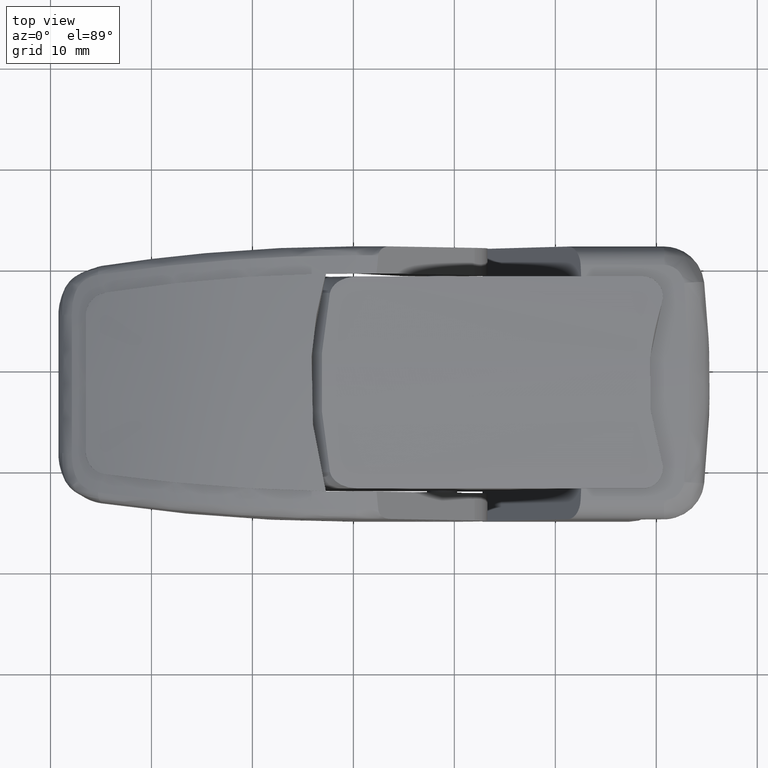
[diagram: clean part render]
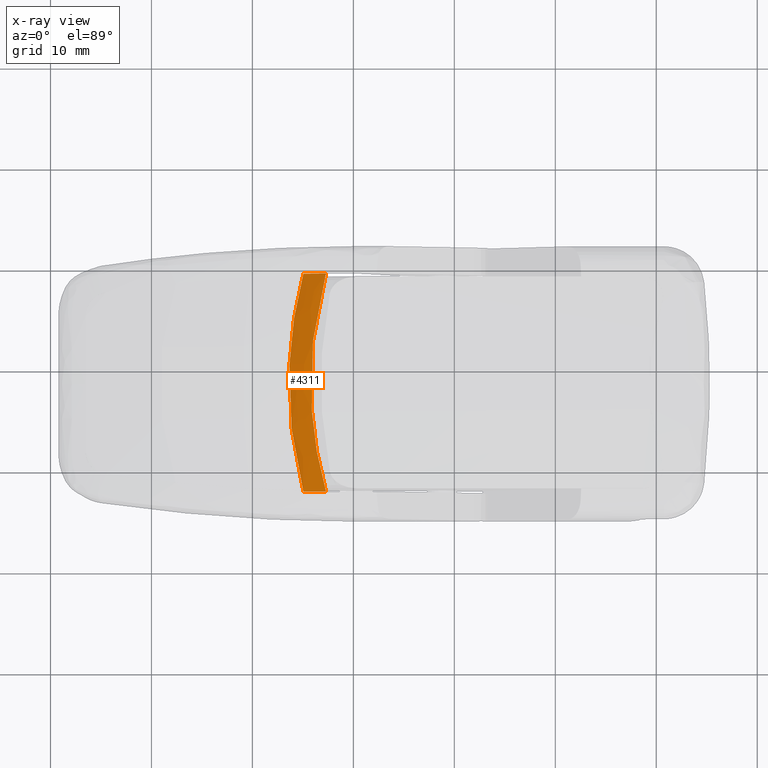
[diagram: x-ray — body ghosted, one internal face saturated and labeled with its STEP entity id]
A machine part, top view, then the same camera in x-ray: the body is ghosted and one INTERNAL B-rep face — a face not visible from any outside direction — is saturated and labeled: STEP entity #4311.
In plain terms, the highlighted face is a freeform B-spline surface patch.
Its self-contained STEP definition (entity closure, byte-faithful):
#120=B_SPLINE_CURVE_WITH_KNOTS('',3,(#7923,#7924,#7925,#7926,#7927,#7928,
#7929,#7930),.UNSPECIFIED.,.F.,.F.,(4,2,2,4),(-2.18820724104218,-1.63768358159095,
-1.09483879283369,0.),.UNSPECIFIED.);
#125=B_SPLINE_CURVE_WITH_KNOTS('',3,(#8123,#8124,#8125,#8126,#8127,#8128,
#8129),.UNSPECIFIED.,.F.,.F.,(4,3,4),(0.,0.142083417204696,0.284452891541096),
 .UNSPECIFIED.);
#126=B_SPLINE_CURVE_WITH_KNOTS('',3,(#8131,#8132,#8133,#8134,#8135,#8136,
#8137),.UNSPECIFIED.,.F.,.F.,(4,3,4),(0.,0.142243869716939,0.284459047716743),
 .UNSPECIFIED.);
#127=B_SPLINE_CURVE_WITH_KNOTS('',3,(#8138,#8139,#8140,#8141,#8142,#8143,
#8144,#8145,#8146,#8147,#8148,#8149,#8150,#8151,#8152,#8153,#8154,#8155,
#8156,#8157,#8158,#8159,#8160,#8161,#8162,#8163,#8164,#8165,#8166,#8167,
#8168,#8169,#8170,#8171,#8172,#8173,#8174,#8175,#8176,#8177),
 .UNSPECIFIED.,.F.,.F.,(4,3,3,3,3,3,3,3,3,3,3,3,3,4),(-2.33002564819911,
-2.13088462914417,-1.93462831574654,-1.83743085028154,-1.64448839725067,
-1.54859831879781,-1.35759771025373,-1.26234259844651,-1.07196446412065,
-0.976709356284376,-0.785708622756046,-0.68981848137074,-0.399678355137873,
-0.00428100592109865),.UNSPECIFIED.);
#179=B_SPLINE_SURFACE_WITH_KNOTS('',3,3,((#8010,#8011,#8012,#8013,#8014,
#8015,#8016,#8017,#8018,#8019,#8020,#8021,#8022,#8023,#8024,#8025,#8026,
#8027,#8028,#8029,#8030,#8031,#8032,#8033,#8034,#8035,#8036,#8037),(#8038,
#8039,#8040,#8041,#8042,#8043,#8044,#8045,#8046,#8047,#8048,#8049,#8050,
#8051,#8052,#8053,#8054,#8055,#8056,#8057,#8058,#8059,#8060,#8061,#8062,
#8063,#8064,#8065),(#8066,#8067,#8068,#8069,#8070,#8071,#8072,#8073,#8074,
#8075,#8076,#8077,#8078,#8079,#8080,#8081,#8082,#8083,#8084,#8085,#8086,
#8087,#8088,#8089,#8090,#8091,#8092,#8093),(#8094,#8095,#8096,#8097,#8098,
#8099,#8100,#8101,#8102,#8103,#8104,#8105,#8106,#8107,#8108,#8109,#8110,
#8111,#8112,#8113,#8114,#8115,#8116,#8117,#8118,#8119,#8120,#8121)),
 .UNSPECIFIED.,.F.,.F.,.F.,(4,4),(4,2,2,2,2,2,2,2,2,2,2,2,2,4),(-8.13643309710909E-6,
1.00000967554227),(0.00427286948800154,0.399678355137873,0.68981848137074,
0.785708622756046,0.976709356284376,1.07196446412065,1.26234259844651,1.35759771025373,
1.54859831879781,1.64448839725067,1.83743085028154,1.93462831574654,2.13088462914417,
2.33003378463221),.UNSPECIFIED.);
#500=FACE_OUTER_BOUND('',#784,.T.);
#784=EDGE_LOOP('',(#3376,#3377,#3378,#3379));
#1998=VERTEX_POINT('',#7915);
#1999=VERTEX_POINT('',#7922);
#2017=VERTEX_POINT('',#8122);
#2018=VERTEX_POINT('',#8130);
#2484=EDGE_CURVE('',#1999,#1998,#120,.T.);
#2519=EDGE_CURVE('',#2017,#1999,#125,.F.);
#2520=EDGE_CURVE('',#1998,#2018,#126,.F.);
#2521=EDGE_CURVE('',#2018,#2017,#127,.T.);
#3376=ORIENTED_EDGE('',*,*,#2519,.T.);
#3377=ORIENTED_EDGE('',*,*,#2484,.T.);
#3378=ORIENTED_EDGE('',*,*,#2520,.T.);
#3379=ORIENTED_EDGE('',*,*,#2521,.T.);
#4311=ADVANCED_FACE('',(#500),#179,.T.);
#7915=CARTESIAN_POINT('',(-13.7416942333299,10.7737898133232,-10.8000000067084));
#7922=CARTESIAN_POINT('',(-13.741694813355,10.7737899529892,10.8000000417668));
#7923=CARTESIAN_POINT('Ctrl Pts',(-13.7416959780912,10.77378938172,10.8000004269687));
#7924=CARTESIAN_POINT('Ctrl Pts',(-14.2135300820645,10.8214169993278,9.02739401513048));
#7925=CARTESIAN_POINT('Ctrl Pts',(-14.5692453643789,10.8561363979793,7.22735803865447));
#7926=CARTESIAN_POINT('Ctrl Pts',(-15.0396852309836,10.9020485983507,3.61507551325672));
#7927=CARTESIAN_POINT('Ctrl Pts',(-15.1569503858712,10.9133733417974,1.80880475368341));
#7928=CARTESIAN_POINT('Ctrl Pts',(-15.1569508204356,10.9133732726213,-3.64809272537182));
#7929=CARTESIAN_POINT('Ctrl Pts',(-14.6800929787777,10.868518179478,-7.27451959182148));
#7930=CARTESIAN_POINT('Ctrl Pts',(-13.741694429824,10.7737897241299,-10.8000000220761));
#8010=CARTESIAN_POINT('Ctrl Pts',(-11.4999621133744,12.5261079785145,10.8000692103521));
#8011=CARTESIAN_POINT('Ctrl Pts',(-11.8378015780897,12.5616230400567,9.60731709676976));
#8012=CARTESIAN_POINT('Ctrl Pts',(-12.1195534983999,12.5905952328311,8.39910008699616));
#8013=CARTESIAN_POINT('Ctrl Pts',(-12.5090047886628,12.6305008123729,6.28502500255128));
#8014=CARTESIAN_POINT('Ctrl Pts',(-12.6429855252686,12.6441389225241,5.38477847619757));
#8015=CARTESIAN_POINT('Ctrl Pts',(-12.7798487884885,12.6580567380309,4.18207228232026));
#8016=CARTESIAN_POINT('Ctrl Pts',(-12.810445901366,12.6611651179724,3.88292907277211));
#8017=CARTESIAN_POINT('Ctrl Pts',(-12.8917921474235,12.6694257407716,2.9870006217444));
#8018=CARTESIAN_POINT('Ctrl Pts',(-12.9324251829424,12.6735464311043,2.38929974799878));
#8019=CARTESIAN_POINT('Ctrl Pts',(-12.97299125595,12.6776598779645,1.49258443103136));
#8020=CARTESIAN_POINT('Ctrl Pts',(-12.983116552967,12.6786863252453,1.19403662081454));
#8021=CARTESIAN_POINT('Ctrl Pts',(-13.0033542753554,12.6807374462755,0.298574438941267));
#8022=CARTESIAN_POINT('Ctrl Pts',(-13.0033543242637,12.6807374589665,-0.298572520374073));
#8023=CARTESIAN_POINT('Ctrl Pts',(-12.9831166697577,12.6786863489654,-1.19403467830519));
#8024=CARTESIAN_POINT('Ctrl Pts',(-12.9729913912469,12.6776599027887,-1.49258250124482));
#8025=CARTESIAN_POINT('Ctrl Pts',(-12.9324254111382,12.6735464804631,-2.38929734236203));
#8026=CARTESIAN_POINT('Ctrl Pts',(-12.8917925302381,12.669425810608,-2.98699770369228));
#8027=CARTESIAN_POINT('Ctrl Pts',(-12.810446406378,12.6611652927911,-3.8829256021885));
#8028=CARTESIAN_POINT('Ctrl Pts',(-12.7798492486978,12.6580567286239,-4.18206945844159));
#8029=CARTESIAN_POINT('Ctrl Pts',(-12.6774470263447,12.6476441282144,-5.08194429734711));
#8030=CARTESIAN_POINT('Ctrl Pts',(-12.5952809586426,12.6392797723835,-5.68144547463182));
#8031=CARTESIAN_POINT('Ctrl Pts',(-12.451153485476,12.6245623219485,-6.57965284722096));
#8032=CARTESIAN_POINT('Ctrl Pts',(-12.3993985790071,12.6192706218741,-6.88000335755784));
#8033=CARTESIAN_POINT('Ctrl Pts',(-12.2326949544089,12.6021923074252,-7.78493337452779));
#8034=CARTESIAN_POINT('Ctrl Pts',(-12.1071065787731,12.58928698411,-8.3875239227535));
#8035=CARTESIAN_POINT('Ctrl Pts',(-11.82605247042,12.5602127474252,-9.59464471147477));
#8036=CARTESIAN_POINT('Ctrl Pts',(-11.6701177828252,12.5439954591835,-10.1993296411922));
#8037=CARTESIAN_POINT('Ctrl Pts',(-11.4999621147654,12.5261079774076,-10.8000692054421));
#8038=CARTESIAN_POINT('Ctrl Pts',(-12.1977021792773,11.9369820303864,10.9811989136535));
#8039=CARTESIAN_POINT('Ctrl Pts',(-12.5400811178496,11.9725618706859,9.76834417629102));
#8040=CARTESIAN_POINT('Ctrl Pts',(-12.8258032188145,12.0015608022658,8.53980912758536));
#8041=CARTESIAN_POINT('Ctrl Pts',(-13.2208157598091,12.0414896076079,6.39024232001325));
#8042=CARTESIAN_POINT('Ctrl Pts',(-13.3567450281872,12.0551296798687,5.47490399889347));
#8043=CARTESIAN_POINT('Ctrl Pts',(-13.495606214321,12.0690478201221,4.25205072246387));
#8044=CARTESIAN_POINT('Ctrl Pts',(-13.526651855664,12.0721559557056,3.94789838111125));
#8045=CARTESIAN_POINT('Ctrl Pts',(-13.6091916410566,12.0804156517589,3.03697030771129));
#8046=CARTESIAN_POINT('Ctrl Pts',(-13.6504240018763,12.0845352873915,2.42926754758376));
#8047=CARTESIAN_POINT('Ctrl Pts',(-13.6915887308426,12.088647597056,1.51755011870227));
#8048=CARTESIAN_POINT('Ctrl Pts',(-13.7018636948538,12.0896737135835,1.21400837147482));
#8049=CARTESIAN_POINT('Ctrl Pts',(-13.7224005551003,12.0917241743492,0.303568337996977));
#8050=CARTESIAN_POINT('Ctrl Pts',(-13.7224006134236,12.0917241858943,-0.303566399271133));
#8051=CARTESIAN_POINT('Ctrl Pts',(-13.7018638031085,12.0896737385598,-1.21400640369509));
#8052=CARTESIAN_POINT('Ctrl Pts',(-13.6915888829212,12.0886476199751,-1.51754818194471));
#8053=CARTESIAN_POINT('Ctrl Pts',(-13.6504241819718,12.084535343156,-2.42926508479123));
#8054=CARTESIAN_POINT('Ctrl Pts',(-13.6091921058541,12.080415711654,-3.03696743490918));
#8055=CARTESIAN_POINT('Ctrl Pts',(-13.5266522687999,12.0721561425339,-3.9478948315264));
#8056=CARTESIAN_POINT('Ctrl Pts',(-13.4956068992556,12.0690477827071,-4.25204806447637));
#8057=CARTESIAN_POINT('Ctrl Pts',(-13.3917089952687,12.0586350422202,-5.16699657909208));
#8058=CARTESIAN_POINT('Ctrl Pts',(-13.3083476201729,12.0502696474621,-5.77654573198568));
#8059=CARTESIAN_POINT('Ctrl Pts',(-13.1621424959016,12.0355469689218,-6.68981923996528));
#8060=CARTESIAN_POINT('Ctrl Pts',(-13.1096442924086,12.0302528909345,-6.99520965431696));
#8061=CARTESIAN_POINT('Ctrl Pts',(-12.9405594923202,12.013164713675,-7.91533118132048));
#8062=CARTESIAN_POINT('Ctrl Pts',(-12.8131922847856,12.0002493013546,-8.52804669868139));
#8063=CARTESIAN_POINT('Ctrl Pts',(-12.5282213437616,11.971142366313,-9.75546928654952));
#8064=CARTESIAN_POINT('Ctrl Pts',(-12.3701424844468,11.9549022954738,-10.3703348594225));
#8065=CARTESIAN_POINT('Ctrl Pts',(-12.1977021802866,11.9369820310696,-10.9811988868104));
#8066=CARTESIAN_POINT('Ctrl Pts',(-12.8954422459478,11.3478560821869,11.1623286168447));
#8067=CARTESIAN_POINT('Ctrl Pts',(-13.242348219537,11.3835018565432,9.92937303991165));
#8068=CARTESIAN_POINT('Ctrl Pts',(-13.532052547136,11.4125264767812,8.68051461571396));
#8069=CARTESIAN_POINT('Ctrl Pts',(-13.9326274374373,11.4524782801382,6.49546240685019));
#8070=CARTESIAN_POINT('Ctrl Pts',(-14.0705025426842,11.4661206926182,5.56502765406423));
#8071=CARTESIAN_POINT('Ctrl Pts',(-14.2113643539345,11.4800388076755,4.32202989753774));
#8072=CARTESIAN_POINT('Ctrl Pts',(-14.2428576734637,11.4831468075846,4.01286759655145));
#8073=CARTESIAN_POINT('Ctrl Pts',(-14.3265913693319,11.4914055325852,3.08694032883201));
#8074=CARTESIAN_POINT('Ctrl Pts',(-14.3684226488673,11.4955241665769,2.46923529223554));
#8075=CARTESIAN_POINT('Ctrl Pts',(-14.4101863215321,11.4996352994819,1.54251589013699));
#8076=CARTESIAN_POINT('Ctrl Pts',(-14.4206108638399,11.5006610982207,1.23398014504746));
#8077=CARTESIAN_POINT('Ctrl Pts',(-14.4414468336764,11.5027109009999,0.30856227911826));
#8078=CARTESIAN_POINT('Ctrl Pts',(-14.441446866624,11.5027109160171,-0.308560270467779));
#8079=CARTESIAN_POINT('Ctrl Pts',(-14.4206109731216,11.5006611237195,-1.23397811587709));
#8080=CARTESIAN_POINT('Ctrl Pts',(-14.4101864222333,11.4996353296653,-1.54251385722196));
#8081=CARTESIAN_POINT('Ctrl Pts',(-14.3684228919452,11.4955242156147,-2.46923281326608));
#8082=CARTESIAN_POINT('Ctrl Pts',(-14.3265916345272,11.4914056199687,-3.08693720978726));
#8083=CARTESIAN_POINT('Ctrl Pts',(-14.2428581657678,11.483146987094,-4.01286402899535));
#8084=CARTESIAN_POINT('Ctrl Pts',(-14.2113646094304,11.4800388283611,-4.32202675380043));
#8085=CARTESIAN_POINT('Ctrl Pts',(-14.1059708629288,11.4696259704692,-5.25204868616432));
#8086=CARTESIAN_POINT('Ctrl Pts',(-14.0214142477532,11.4612595310601,-5.87164591595627));
#8087=CARTESIAN_POINT('Ctrl Pts',(-13.8731315087205,11.446531612831,-6.79998564987588));
#8088=CARTESIAN_POINT('Ctrl Pts',(-13.8198901490188,11.4412351458207,-7.1104160457121));
#8089=CARTESIAN_POINT('Ctrl Pts',(-13.6484236963767,11.4241371526125,-8.04572875224493));
#8090=CARTESIAN_POINT('Ctrl Pts',(-13.5192780346432,11.411211628998,-8.6685687547651));
#8091=CARTESIAN_POINT('Ctrl Pts',(-13.230390068637,11.3820719844311,-9.9162945397948));
#8092=CARTESIAN_POINT('Ctrl Pts',(-13.0701660575549,11.3658092339906,-10.5413399083279));
#8093=CARTESIAN_POINT('Ctrl Pts',(-12.8954422459464,11.3478560847191,-11.1623285681993));
#8094=CARTESIAN_POINT('Ctrl Pts',(-13.5931823118506,10.7587301340588,11.343458320146));
#8095=CARTESIAN_POINT('Ctrl Pts',(-13.9446277593352,10.794440687169,10.0904001194274));
#8096=CARTESIAN_POINT('Ctrl Pts',(-14.2383022675517,10.8234920462157,8.82122365631409));
#8097=CARTESIAN_POINT('Ctrl Pts',(-14.6444384085815,10.8634670753736,6.60067972430364));
#8098=CARTESIAN_POINT('Ctrl Pts',(-14.7842620456089,10.877111449962,5.65515317676589));
#8099=CARTESIAN_POINT('Ctrl Pts',(-14.9271217797648,10.891029889767,4.39200833767908));
#8100=CARTESIAN_POINT('Ctrl Pts',(-14.9590636277622,10.8941376453177,4.07783690489089));
#8101=CARTESIAN_POINT('Ctrl Pts',(-15.0439908629643,10.9023954435727,3.13691001479786));
#8102=CARTESIAN_POINT('Ctrl Pts',(-15.0864214678019,10.906513022864,2.5092030918207));
#8103=CARTESIAN_POINT('Ctrl Pts',(-15.1287837964244,10.9106230185734,1.56748157780763));
#8104=CARTESIAN_POINT('Ctrl Pts',(-15.1393580057267,10.9116484865589,1.25395189570766));
#8105=CARTESIAN_POINT('Ctrl Pts',(-15.1604931134214,10.9136976290735,0.31355617817384));
#8106=CARTESIAN_POINT('Ctrl Pts',(-15.1604931557839,10.9136976429449,-0.313554149364862));
#8107=CARTESIAN_POINT('Ctrl Pts',(-15.1393581064723,10.911648513314,-1.25394984126704));
#8108=CARTESIAN_POINT('Ctrl Pts',(-15.1287839139075,10.9106230468516,-1.56747953792186));
#8109=CARTESIAN_POINT('Ctrl Pts',(-15.086421662779,10.9065130783078,-2.50920055569533));
#8110=CARTESIAN_POINT('Ctrl Pts',(-15.0439912101434,10.9023955210147,-3.13690694100403));
#8111=CARTESIAN_POINT('Ctrl Pts',(-14.9590640281897,10.8941378368369,-4.07783325833335));
#8112=CARTESIAN_POINT('Ctrl Pts',(-14.927122259988,10.8910298824444,-4.39200535983495));
#8113=CARTESIAN_POINT('Ctrl Pts',(-14.820232831853,10.8806168844751,-5.33710096790983));
#8114=CARTESIAN_POINT('Ctrl Pts',(-14.7344809092835,10.8722494061387,-5.96674617331035));
#8115=CARTESIAN_POINT('Ctrl Pts',(-14.5841205191461,10.8575162598043,-6.91015204262014));
#8116=CARTESIAN_POINT('Ctrl Pts',(-14.5301358624199,10.8522174148811,-7.22562234247093));
#8117=CARTESIAN_POINT('Ctrl Pts',(-14.3562882342889,10.8351095588622,-8.17612655903835));
#8118=CARTESIAN_POINT('Ctrl Pts',(-14.2253637406556,10.8221739462425,-8.80909153069519));
#8119=CARTESIAN_POINT('Ctrl Pts',(-13.932558941979,10.7930016033189,-10.0771191148675));
#8120=CARTESIAN_POINT('Ctrl Pts',(-13.77019075918,10.7767160702807,-10.7123451265587));
#8121=CARTESIAN_POINT('Ctrl Pts',(-13.5931823114676,10.7587301383812,-11.3434582495677));
#8122=CARTESIAN_POINT('',(-11.4999999999679,12.5260957910348,10.8000000001133));
#8123=CARTESIAN_POINT('Ctrl Pts',(-13.7416912475845,10.7737925759919,10.8));
#8124=CARTESIAN_POINT('Ctrl Pts',(-13.3689597080402,11.0659878275474,10.8));
#8125=CARTESIAN_POINT('Ctrl Pts',(-12.9957537679899,11.3581635509147,10.8));
#8126=CARTESIAN_POINT('Ctrl Pts',(-12.6226197048344,11.6498526351098,10.8));
#8127=CARTESIAN_POINT('Ctrl Pts',(-12.2487344093258,11.942128978145,10.8));
#8128=CARTESIAN_POINT('Ctrl Pts',(-11.8743298839061,12.2343789149626,10.8));
#8129=CARTESIAN_POINT('Ctrl Pts',(-11.5,12.5260957910415,10.8));
#8130=CARTESIAN_POINT('',(-11.5000000012298,12.5260957899994,-10.7999999972708));
#8131=CARTESIAN_POINT('Ctrl Pts',(-11.5,12.5260957897913,-10.8));
#8132=CARTESIAN_POINT('Ctrl Pts',(-11.8739915473916,12.2346425822793,-10.8));
#8133=CARTESIAN_POINT('Ctrl Pts',(-12.2480573236721,11.9426572758985,-10.8));
#8134=CARTESIAN_POINT('Ctrl Pts',(-12.6216056644274,11.650645176716,-10.8));
#8135=CARTESIAN_POINT('Ctrl Pts',(-12.9950786575185,11.3586919786909,-10.8));
#8136=CARTESIAN_POINT('Ctrl Pts',(-13.3686243867203,11.0662508590638,-10.8));
#8137=CARTESIAN_POINT('Ctrl Pts',(-13.7416938529886,10.7737903853887,-10.8));
#8138=CARTESIAN_POINT('Ctrl Pts',(-11.5000000013713,12.5260957899354,-10.7999999951584));
#8139=CARTESIAN_POINT('Ctrl Pts',(-11.6701476113411,12.5439824052319,-10.1992844052238));
#8140=CARTESIAN_POINT('Ctrl Pts',(-11.8260754045627,12.5601989671595,-9.594623796045));
#8141=CARTESIAN_POINT('Ctrl Pts',(-11.9676245739129,12.5748418432353,-8.98667220116925));
#8142=CARTESIAN_POINT('Ctrl Pts',(-12.1071232983494,12.589272606369,-8.38752723695871));
#8143=CARTESIAN_POINT('Ctrl Pts',(-12.2327117083959,12.6021779299305,-7.78493645741126));
#8144=CARTESIAN_POINT('Ctrl Pts',(-12.3442002764683,12.6135995824068,-7.17973626324354));
#8145=CARTESIAN_POINT('Ctrl Pts',(-12.3994158568353,12.6192562446201,-6.8800061605342));
#8146=CARTESIAN_POINT('Ctrl Pts',(-12.4511707370109,12.6245479447526,-6.57965551855412));
#8147=CARTESIAN_POINT('Ctrl Pts',(-12.4994537037471,12.6294783207595,-6.27875408391688));
#8148=CARTESIAN_POINT('Ctrl Pts',(-12.5952981169438,12.6392653953152,-5.68144775867816));
#8149=CARTESIAN_POINT('Ctrl Pts',(-12.6774643098901,12.6476297511714,-5.08194635467251));
#8150=CARTESIAN_POINT('Ctrl Pts',(-12.7458698928364,12.6545854519568,-4.4808224895008));
#8151=CARTESIAN_POINT('Ctrl Pts',(-12.7798666447813,12.6580423515843,-4.18207115880232));
#8152=CARTESIAN_POINT('Ctrl Pts',(-12.8104638483232,12.6611509157465,-3.88292718364048));
#8153=CARTESIAN_POINT('Ctrl Pts',(-12.83765285229,12.6639119035903,-3.58347294270724));
#8154=CARTESIAN_POINT('Ctrl Pts',(-12.8918098243894,12.6694114335403,-2.98699890522409));
#8155=CARTESIAN_POINT('Ctrl Pts',(-12.9324427414595,12.67353210337,-2.38929830809462));
#8156=CARTESIAN_POINT('Ctrl Pts',(-12.9595100314431,12.6762767338043,-1.79097612219119));
#8157=CARTESIAN_POINT('Ctrl Pts',(-12.9730089294485,12.6776455256677,-1.49258311104108));
#8158=CARTESIAN_POINT('Ctrl Pts',(-12.9831342206901,12.6786719718364,-1.19403516549738));
#8159=CARTESIAN_POINT('Ctrl Pts',(-12.9898831599384,12.679355991339,-0.895409622923669));
#8160=CARTESIAN_POINT('Ctrl Pts',(-13.00337167975,12.6807230818213,-0.298572638759619));
#8161=CARTESIAN_POINT('Ctrl Pts',(-13.0033716656886,12.6807230691303,0.298574557355133));
#8162=CARTESIAN_POINT('Ctrl Pts',(-12.9898831160048,12.6793559712779,0.895411566885762));
#8163=CARTESIAN_POINT('Ctrl Pts',(-12.9831341620913,12.6786719481163,1.19403710970261));
#8164=CARTESIAN_POINT('Ctrl Pts',(-12.9730088567924,12.6776455008435,1.49258504312084));
#8165=CARTESIAN_POINT('Ctrl Pts',(-12.9595099431016,12.6762767014516,1.79097807497881));
#8166=CARTESIAN_POINT('Ctrl Pts',(-12.9324426028261,12.6735320540111,2.38930071886869));
#8167=CARTESIAN_POINT('Ctrl Pts',(-12.8918096085859,12.6694113637041,2.98700183593301));
#8168=CARTESIAN_POINT('Ctrl Pts',(-12.8376525526245,12.6639117638643,3.58347624316184));
#8169=CARTESIAN_POINT('Ctrl Pts',(-12.8104635065029,12.6611507409276,3.88293067030102));
#8170=CARTESIAN_POINT('Ctrl Pts',(-12.7798663562359,12.658042360992,4.18207400111714));
#8171=CARTESIAN_POINT('Ctrl Pts',(-12.7458693760929,12.6545851675815,4.48082703045554));
#8172=CARTESIAN_POINT('Ctrl Pts',(-12.6430028251868,12.6441245454773,5.38478066314853));
#8173=CARTESIAN_POINT('Ctrl Pts',(-12.5090219378508,12.6304864352782,6.28502753373982));
#8174=CARTESIAN_POINT('Ctrl Pts',(-12.3441963474281,12.6135973912096,7.17975759145918));
#8175=CARTESIAN_POINT('Ctrl Pts',(-12.1195752225171,12.5905813287909,8.39907839923626));
#8176=CARTESIAN_POINT('Ctrl Pts',(-11.8378303153826,12.5616098540871,9.60727130320401));
#8177=CARTESIAN_POINT('Ctrl Pts',(-11.4999999999678,12.5260957910381,10.8000000001134));